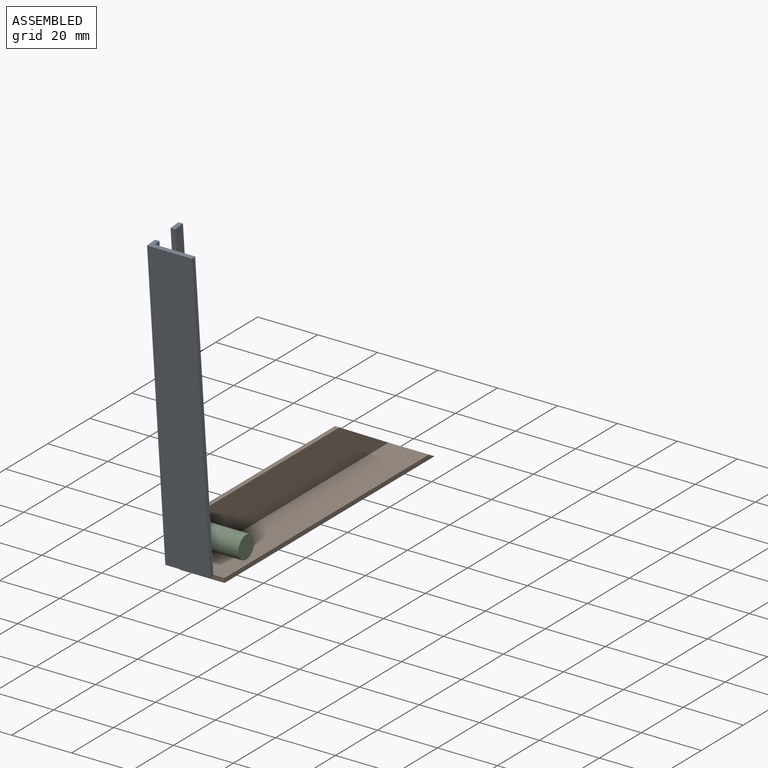
[diagram: assembled view]
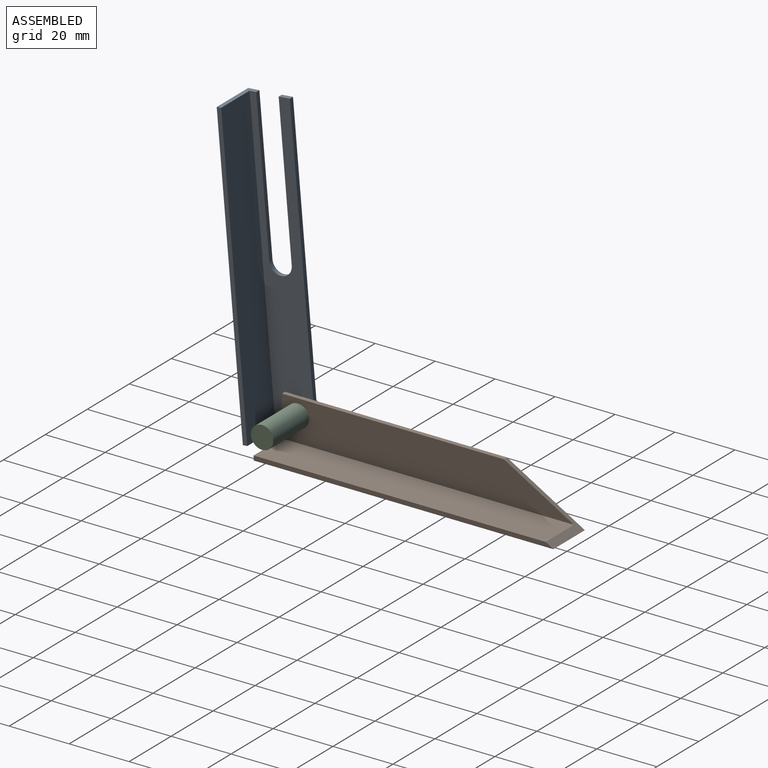
[diagram: assembled view, second angle]
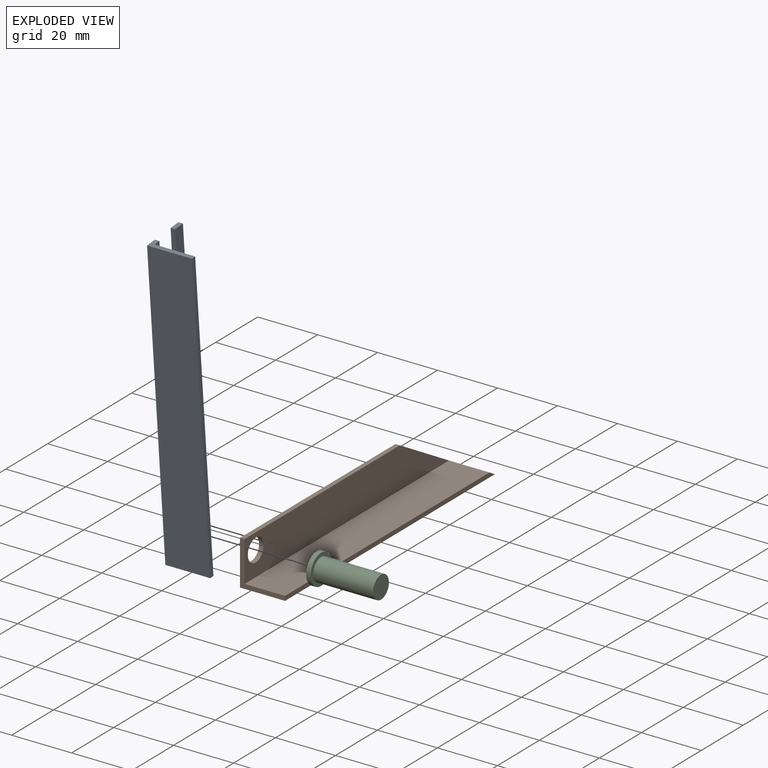
[diagram: exploded view]
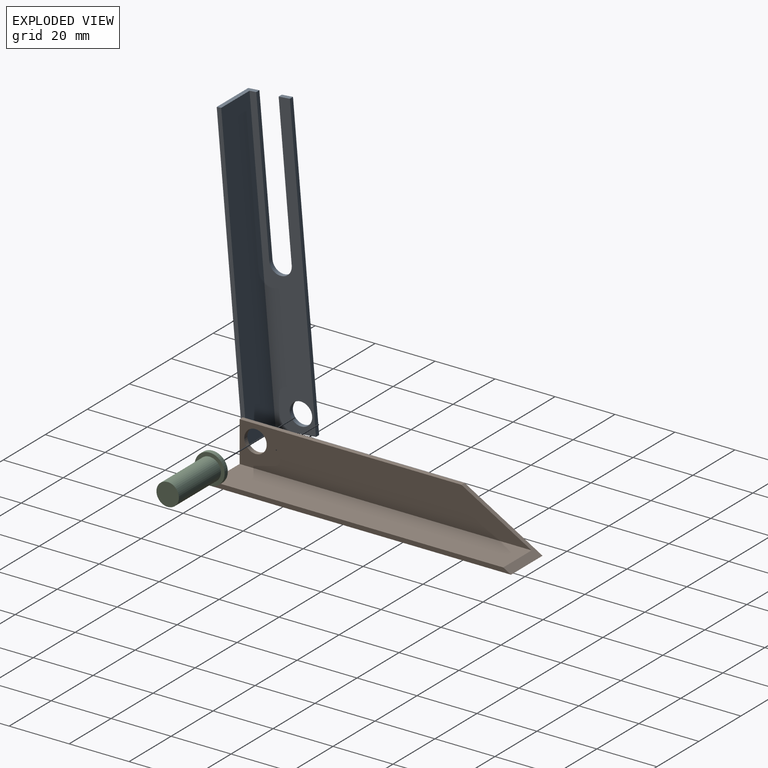
[diagram: exploded view, second angle]
ASSEMBLY  parts=3 mates=3
PART A: 13 faces, bbox 15x100x15 mm
  f0: plane 100x13.5mm, normal (0,0,-1), area 908.7mm2, adj f1,f2,f3,f7,f8,f9,f10,f11
  f1: plane 15x3.75mm, normal (0,-1,0), area 25.9mm2, adj f0,f2,f4,f5,f6,f11
  f2: plane 100x13.5mm, normal (1,0,0), area 1350mm2, adj f0,f1,f6,f8
  f3: plane 100x1.5mm, normal (1,0,0), area 150mm2, adj f0,f4,f7,f8
  f4: plane 100x15mm, normal (0,0,1), area 1058.7mm2, adj f1,f3,f5,f7,f8,f9,f10,f11
  f5: plane 100x15mm, normal (-1,0,0), area 1500mm2, adj f1,f4,f6,f8
  f6: plane 100x1.5mm, normal (0,0,-1), area 150mm2, adj f1,f2,f5,f8
  f7: plane 3.75x1.5mm, normal (0,-1,0), area 5.6mm2, adj f0,f3,f4,f10
  f8: plane 15x15mm, normal (0,1,0), area 42.7mm2, adj f0,f2,f3,f4,f5,f6
  f9: cylinder r=3.75mm len=7.5mm, axis (0,0,1), area 17.7mm2, adj f0,f4,f10,f11
  f10: plane 50x1.5mm, normal (-1,0,0), area 75mm2, adj f0,f4,f7,f9
  f11: plane 50x1.5mm, normal (1,0,0), area 75mm2, adj f0,f1,f4,f9
  f12: cylinder r=3.75mm len=7.5mm, axis (0,0,1), area 35.3mm2, adj f0,f4
PART B: 9 faces, bbox 15x100x15 mm
  f0: plane 100x15mm, normal (-1,0,0), area 1261mm2, adj f1,f2,f6,f7,f8
  f1: plane 74.02x1.5mm, normal (0,0,1), area 111mm2, adj f0,f5,f6,f7
  f2: plane 100x15mm, normal (0,0,-1), area 1500mm2, adj f0,f3,f6,f7
  f3: plane 100x1.5mm, normal (1,0,0), area 148.1mm2, adj f2,f4,f6,f7
  f4: plane 97.4x13.5mm, normal (0,0,1), area 1314.9mm2, adj f3,f5,f6,f7
  f5: plane 97.4x13.5mm, normal (1,0,0), area 1112.9mm2, adj f1,f4,f6,f7,f8
  f6: plane 15x15mm, normal (0,-1,0), area 42.7mm2, adj f0,f1,f2,f3,f4,f5
  f7: plane 25.98x15mm, normal (0,0.5,0.87), area 85.5mm2, adj f0,f1,f2,f3,f4,f5
  f8: cylinder r=3.75mm len=7.5mm, axis (-1,0,0), area 35.3mm2, adj f0,f5
PART C: 5 faces, bbox 10x10x21.5 mm
  f0: cylinder r=5mm len=10mm, axis (0,0,-1), area 47.1mm2, adj f1,f2
  f1: plane 10x10mm, normal (0,0,1), area 78.5mm2, adj f0
  f2: plane 10x10mm, normal (0,0,-1), area 34.4mm2, adj f0,f3
  f3: cylinder r=3.75mm len=20mm, axis (0,0,1), area 471.2mm2, adj f2,f4
  f4: plane 7.5x7.5mm, normal (0,0,-1), area 44.2mm2, adj f3
PLACE A rot(axis=(-0.56,-0.61,0.56),117.2deg) t=(13.5,-3.14,2.94)mm
PLACE B at identity fixed
PLACE C rot(axis=(-0.27,-0.93,0.27),94.4deg) t=(-1.5,5.3,9.7)mm
MATE revolute A.f12 <-> B.f8  axis (1,0,0) through (0,5.3,9.7)mm
MATE planar B.f0 <-> A.f0  axis (-1,0,0) through (0,45.18,7.04)mm
MATE revolute C.f3 <-> A.f12  axis (1,0,0) through (-1.5,5.3,9.7)mm
